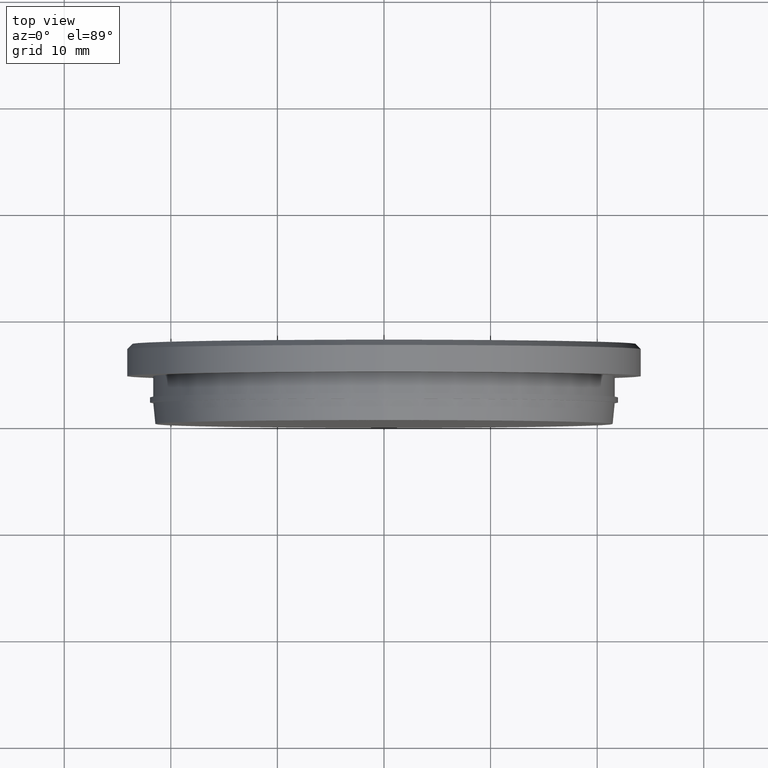
[diagram: clean part render]
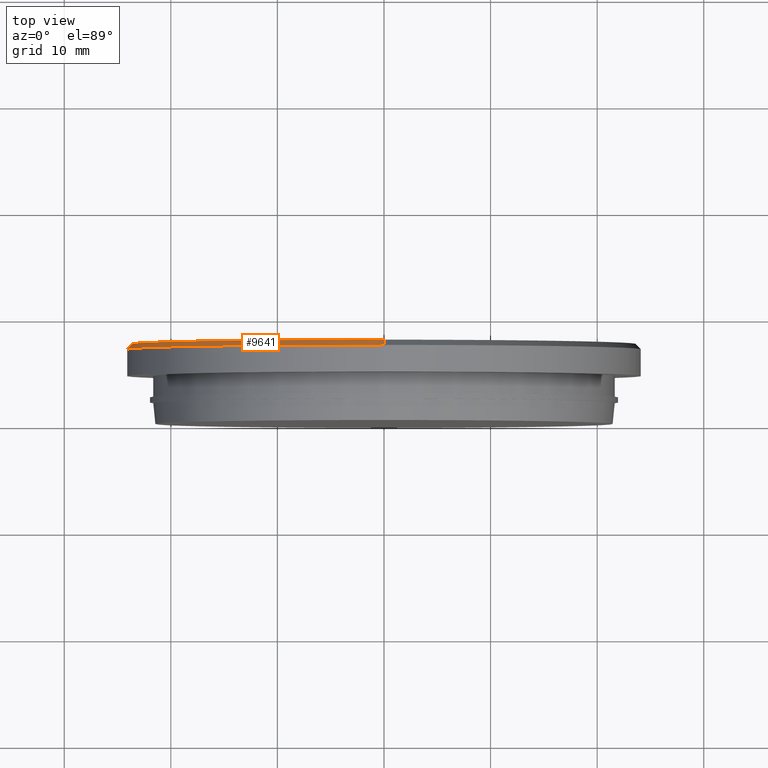
[diagram: same view with one face highlighted and labeled with its STEP entity id]
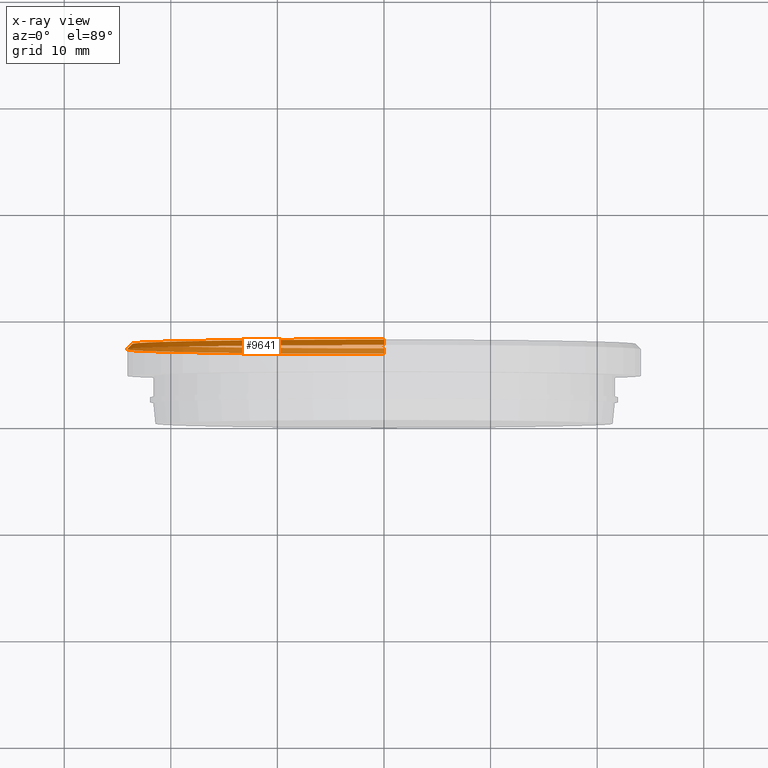
[diagram: x-ray of the same camera — body ghosted, the highlighted face saturated]
A machine part, top view. The second image highlights one B-rep face of the part: STEP entity #9641.
The next image is the same camera in x-ray: the body ghosted, the highlighted face saturated — about 50% of this face is hidden behind the body in this view.
In plain terms, the highlighted conical surface has half-angle 45 deg.
Its self-contained STEP definition (entity closure, byte-faithful):
#221 = LINE ( 'NONE', #15220, #6006 ) ;
#276 = CARTESIAN_POINT ( 'NONE',  ( 0.0000000000000000000, 7.000000000000013300, 0.0000000000000000000 ) ) ;
#1048 = EDGE_CURVE ( 'NONE', #10727, #2028, #12807, .T. ) ;
#1219 = FACE_OUTER_BOUND ( 'NONE', #12885, .T. ) ;
#1553 = CIRCLE ( 'NONE', #3938, 23.65000000000002300 ) ;
#2028 = VERTEX_POINT ( 'NONE', #10420 ) ;
#2133 = AXIS2_PLACEMENT_3D ( 'NONE', #4675, #5879, #5769 ) ;
#2265 = ORIENTED_EDGE ( 'NONE', *, *, #11386, .F. ) ;
#2599 = DIRECTION ( 'NONE',  ( 0.0000000000000000000, -1.000000000000000000, 0.0000000000000000000 ) ) ;
#2710 = ORIENTED_EDGE ( 'NONE', *, *, #3053, .T. ) ;
#3053 = EDGE_CURVE ( 'NONE', #12594, #5537, #221, .T. ) ;
#3284 = VECTOR ( 'NONE', #11730, 1000.000000000000000 ) ;
#3938 = AXIS2_PLACEMENT_3D ( 'NONE', #12557, #14899, #7751 ) ;
#4030 = CARTESIAN_POINT ( 'NONE',  ( 2.957522019940858300E-015, 7.000000000000013300, -24.15000000000000200 ) ) ;
#4363 = ORIENTED_EDGE ( 'NONE', *, *, #13939, .F. ) ;
#4675 = CARTESIAN_POINT ( 'NONE',  ( 0.0000000000000000000, 7.500000000000000000, 0.0000000000000000000 ) ) ;
#5537 = VERTEX_POINT ( 'NONE', #4030 ) ;
#5575 = CARTESIAN_POINT ( 'NONE',  ( 2.896289679983493100E-015, 7.500000000000000000, 23.65000000000002300 ) ) ;
#5769 = DIRECTION ( 'NONE',  ( 0.0000000000000000000, 0.0000000000000000000, -1.000000000000000000 ) ) ;
#5879 = DIRECTION ( 'NONE',  ( 0.0000000000000000000, -1.000000000000000000, 0.0000000000000000000 ) ) ;
#6006 = VECTOR ( 'NONE', #8039, 1000.000000000000000 ) ;
#7372 = DIRECTION ( 'NONE',  ( 0.0000000000000000000, 0.0000000000000000000, 1.000000000000000000 ) ) ;
#7751 = DIRECTION ( 'NONE',  ( 0.0000000000000000000, 0.0000000000000000000, 1.000000000000000000 ) ) ;
#8039 = DIRECTION ( 'NONE',  ( 0.0000000000000000000, -0.7071067811865524600, -0.7071067811865426900 ) ) ;
#8114 = CONICAL_SURFACE ( 'NONE', #2133, 23.65000000000002300, 0.7853981633974415100 ) ;
#9641 = ADVANCED_FACE ( 'NONE', ( #1219 ), #8114, .T. ) ;
#10420 = CARTESIAN_POINT ( 'NONE',  ( 0.0000000000000000000, 7.000000000000013300, 24.15000000000000200 ) ) ;
#10727 = VERTEX_POINT ( 'NONE', #14968 ) ;
#11092 = CIRCLE ( 'NONE', #11854, 24.15000000000000200 ) ;
#11386 = EDGE_CURVE ( 'NONE', #12594, #10727, #1553, .T. ) ;
#11730 = DIRECTION ( 'NONE',  ( 8.659560562354874900E-017, -0.7071067811865524600, 0.7071067811865426900 ) ) ;
#11854 = AXIS2_PLACEMENT_3D ( 'NONE', #276, #2599, #7372 ) ;
#12425 = ORIENTED_EDGE ( 'NONE', *, *, #1048, .F. ) ;
#12557 = CARTESIAN_POINT ( 'NONE',  ( 0.0000000000000000000, 7.500000000000000000, 0.0000000000000000000 ) ) ;
#12594 = VERTEX_POINT ( 'NONE', #14411 ) ;
#12807 = LINE ( 'NONE', #5575, #3284 ) ;
#12885 = EDGE_LOOP ( 'NONE', ( #12425, #2265, #2710, #4363 ) ) ;
#13939 = EDGE_CURVE ( 'NONE', #2028, #5537, #11092, .T. ) ;
#14411 = CARTESIAN_POINT ( 'NONE',  ( 0.0000000000000000000, 7.500000000000000000, -23.65000000000002300 ) ) ;
#14899 = DIRECTION ( 'NONE',  ( -0.0000000000000000000, 1.000000000000000000, -0.0000000000000000000 ) ) ;
#14968 = CARTESIAN_POINT ( 'NONE',  ( 2.926905849962175700E-015, 7.500000000000000000, 23.65000000000002300 ) ) ;
#15220 = CARTESIAN_POINT ( 'NONE',  ( 0.0000000000000000000, 7.500000000000000000, -23.65000000000002300 ) ) ;